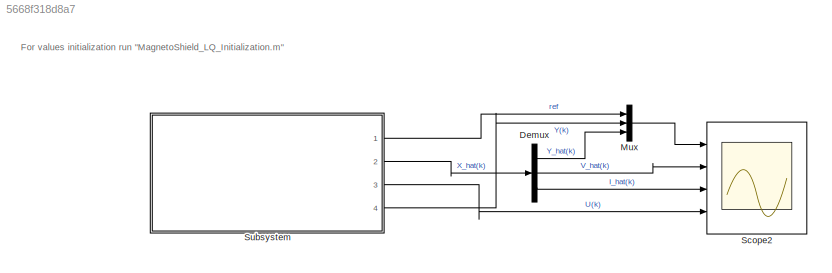
MODEL slx_5668f318d8a7
KIND model
CONFIG AbsTol = auto
CONFIG EnableMultiTasking = on
CONFIG FixedStep = auto
CONFIG MaxStep = auto
CONFIG MinStep = auto
CONFIG RelTol = 1e-3
CONFIG SampleTimeConstraint = Unconstrained
CONFIG Solver = FixedStepAuto
CONFIG SolverName = FixedStepAuto
CONFIG StartTime = 0.0
CONFIG StopTime = 15
BLOCK [Demux] Demux
  DisplayOption = bar
  Outputs = 3
  Ports = [1, 3]
BLOCK [Mux] Mux
  DisplayOption = bar
  Inputs = 3
  Ports = [3, 1]
BLOCK [Scope] Scope2
  Floating = off
  NumInputPorts = 4
  Ports = [4]
  ScopeSpecificationString = Simulink.scopes.TimeScopeBlockCfg('CurrentConfiguration', extmgr.ConfigurationSet(extmgr.Configuration('Core','General UI',true,'FigureColor',[0 0 0]),extmgr.Configuration('Core','Source UI',true),extmgr.Configuration('Sources','WiredSimulink',true,'DataLoggingSaveFormat','StructureWithTime','DataLogging',true),extmgr.Configuration('Visuals','Time Domain',true,'SerializedDisplays',{struct('MinYLim...<+3879ch>
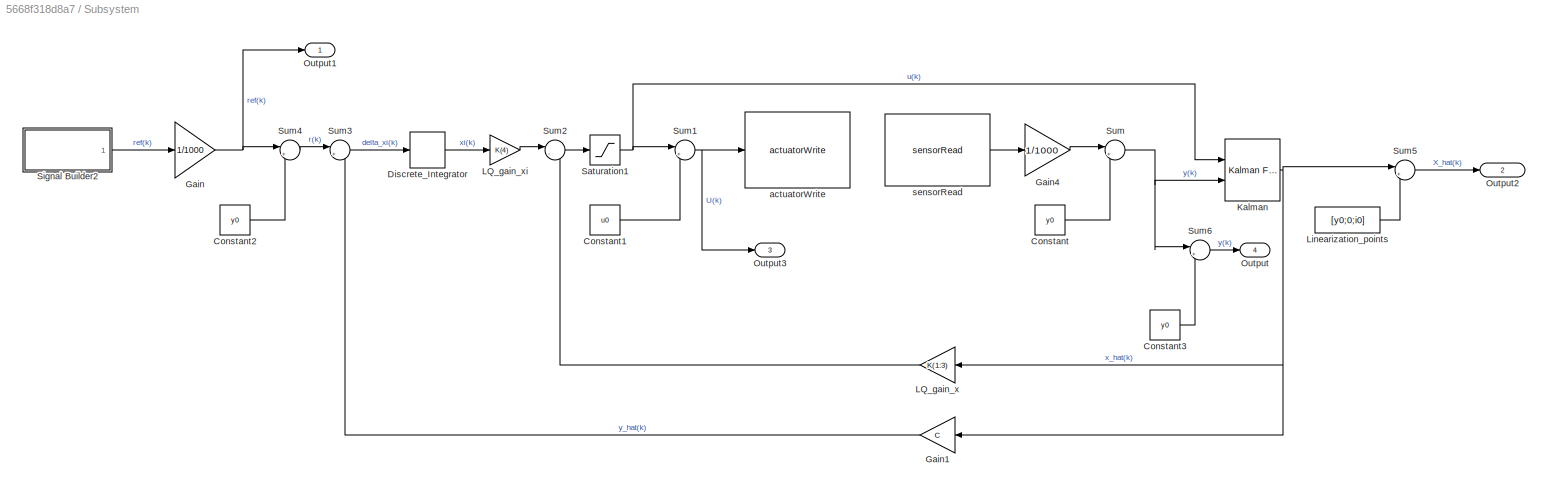
BLOCK [SubSystem] Subsystem
  Ports = [0, 4]
  RequestExecContextInheritance = off
BLOCK [Constant] Subsystem/Constant
  Value = y0
BLOCK [Constant] Subsystem/Constant1
  Value = u0
BLOCK [Constant] Subsystem/Constant2
  Value = y0
BLOCK [Constant] Subsystem/Constant3
  Value = y0
BLOCK [DiscreteIntegrator] Subsystem/Discrete_Integrator
  ICPrevOutput = DiscIntNeverNeededParam
  ICPrevScaledInput = DiscIntNeverNeededParam
  InitialConditionSetting = Auto
  IntegratorMethod = Accumulation: Forward Euler
  LimitOutput = on
  LowerSaturationLimit = -1
  Ports = [1, 1]
  SampleTime = Ts
  UpperSaturationLimit = 1
BLOCK [Gain] Subsystem/Gain
  Gain = 1/1000
  OutDataTypeStr = Inherit: Inherit via internal rule
  ParamDataTypeStr = Inherit: Inherit via internal rule
  SaturateOnIntegerOverflow = off
BLOCK [Gain] Subsystem/Gain1
  Gain = C
  Multiplication = Matrix(K*u)
  OutDataTypeStr = Inherit: Inherit via internal rule
  ParamDataTypeStr = Inherit: Inherit via internal rule
  SaturateOnIntegerOverflow = off
BLOCK [Gain] Subsystem/Gain4
  Gain = 1/1000
  OutDataTypeStr = Inherit: Inherit via internal rule
  ParamDataTypeStr = Inherit: Inherit via internal rule
  SaturateOnIntegerOverflow = off
BLOCK [Reference] Subsystem/Kalman  REF=ctrlSharedLib/Kalman Filter
  Ports = [2, 1]
  SourceBlock = ctrlSharedLib/Kalman Filter
  SourceProductBaseCode = CT,ID
  SourceType = ctrlKalmanFilter
BLOCK [Gain] Subsystem/LQ_gain_x
  Gain = K(1:3)
  Multiplication = Matrix(K*u)
  OutDataTypeStr = Inherit: Inherit via internal rule
  ParamDataTypeStr = Inherit: Inherit via internal rule
  SaturateOnIntegerOverflow = off
BLOCK [Gain] Subsystem/LQ_gain_xi
  Gain = K(4)
  Multiplication = Matrix(K*u)
  OutDataTypeStr = Inherit: Inherit via internal rule
  ParamDataTypeStr = Inherit: Inherit via internal rule
  SaturateOnIntegerOverflow = off
BLOCK [Constant] Subsystem/Linearization_points
  Value = [y0;0;i0]
BLOCK [Outport] Subsystem/Output
  IconDisplay = Signal name
  Port = 4
BLOCK [Outport] Subsystem/Output1
  IconDisplay = Signal name
BLOCK [Outport] Subsystem/Output2
  IconDisplay = Signal name
  Port = 2
BLOCK [Outport] Subsystem/Output3
  IconDisplay = Signal name
  Port = 3
BLOCK [Saturate] Subsystem/Saturation1
  InputPortMap = u0
  LowerLimit = 0-u0
  Ports = [1, 1]
  UpperLimit = 10-u0
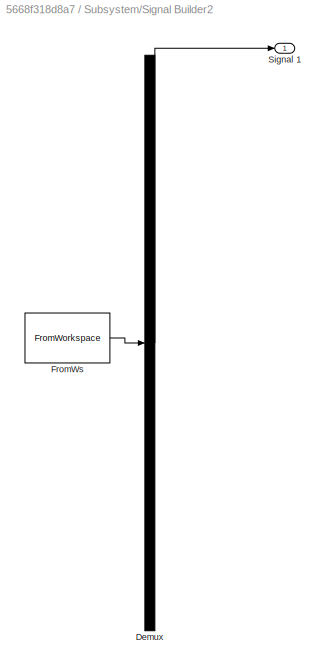
BLOCK [SubSystem] Subsystem/Signal Builder2
  ClipboardFcn = sigbuilder_block('clipboard');
  CloseFcn = sigbuilder_block('close');
  ContinueFcn = sigbuilder_block('continue');
  CopyFcn = sigbuilder_block('copy');
  DeleteFcn = sigbuilder_block('delete');
  LoadFcn = sigbuilder_block('load');
  MaskHideContents = on
  ModelCloseFcn = sigbuilder_block('modelClose');
  NameChangeFcn = sigbuilder_block('namechange');
  OpenFcn = sigbuilder_block('open',[434.4 169.8 550.8 400.2 ]);
  PauseFcn = sigbuilder_block('pause');
  Ports = [0, 1]
  PreSaveFcn = sigbuilder_block('preSave');
  RequestExecContextInheritance = off
  StartFcn = sigbuilder_block('start');
  StopFcn = sigbuilder_block('stop');
  Tag = STV Subsys
BLOCK [Demux] Subsystem/Signal Builder2/Demux
  Outputs = 1
  Ports = [1, 1]
  Tag = STV Demux
BLOCK [FromWorkspace] Subsystem/Signal Builder2/FromWs
  SampleTime = 0
  Tag = STV FromWs
  VariableName = tuvar
  ZeroCross = on
BLOCK [Outport] Subsystem/Signal Builder2/Signal 1
  IconDisplay = Port number
  Tag = STV Outport
BLOCK [Sum] Subsystem/Sum
  IconShape = round
  InputSameDT = off
  Inputs = |+-
  OutDataTypeStr = Inherit: Inherit via internal rule
  Ports = [2, 1]
  SaturateOnIntegerOverflow = off
BLOCK [Sum] Subsystem/Sum1
  IconShape = round
  InputSameDT = off
  Inputs = |++
  OutDataTypeStr = Inherit: Inherit via internal rule
  Ports = [2, 1]
  SaturateOnIntegerOverflow = off
BLOCK [Sum] Subsystem/Sum2
  IconShape = round
  InputSameDT = off
  Inputs = |--
  OutDataTypeStr = Inherit: Inherit via internal rule
  Ports = [2, 1]
  SaturateOnIntegerOverflow = off
BLOCK [Sum] Subsystem/Sum3
  IconShape = round
  InputSameDT = off
  Inputs = |+-
  OutDataTypeStr = Inherit: Inherit via internal rule
  Ports = [2, 1]
  SaturateOnIntegerOverflow = off
BLOCK [Sum] Subsystem/Sum4
  IconShape = round
  InputSameDT = off
  Inputs = |+-
  OutDataTypeStr = Inherit: Inherit via internal rule
  Ports = [2, 1]
  SaturateOnIntegerOverflow = off
BLOCK [Sum] Subsystem/Sum5
  IconShape = round
  InputSameDT = off
  Inputs = |++
  OutDataTypeStr = Inherit: Inherit via internal rule
  Ports = [2, 1]
  SaturateOnIntegerOverflow = off
BLOCK [Sum] Subsystem/Sum6
  IconShape = round
  InputSameDT = off
  Inputs = |++
  OutDataTypeStr = Inherit: Inherit via internal rule
  Ports = [2, 1]
  SaturateOnIntegerOverflow = off
BLOCK [Reference] Subsystem/actuatorWrite  REF=MagnetoLibrary/actuatorWrite
  Ports = [1]
  SourceBlock = MagnetoLibrary/actuatorWrite
  SourceProductName = AutomationShield
BLOCK [Reference] Subsystem/sensorRead  REF=MagnetoLibrary/sensorRead
  Ports = [0, 1]
  SourceBlock = MagnetoLibrary/sensorRead
  SourceProductName = AutomationShield
ANNOTATION (root): For values initialization run "MagnetoShield_LQ_Initialization.m"
LINE Demux:1 -> Mux:3
LINE Demux:2 -> Scope2:2
LINE Demux:3 -> Scope2:3
LINE Mux:1 -> Scope2:1
LINE Subsystem/Constant1:1 -> Subsystem/Sum1:2
LINE Subsystem/Constant2:1 -> Subsystem/Sum4:2
LINE Subsystem/Constant3:1 -> Subsystem/Sum6:2
LINE Subsystem/Constant:1 -> Subsystem/Sum:2
LINE Subsystem/Discrete_Integrator:1 -> Subsystem/LQ_gain_xi:1
LINE Subsystem/Gain1:1 -> Subsystem/Sum3:2
LINE Subsystem/Gain4:1 -> Subsystem/Sum:1
NET Subsystem/Gain:1 -> Subsystem/Output1:1, Subsystem/Sum4:1
NET Subsystem/Kalman:1 -> Subsystem/Gain1:1, Subsystem/LQ_gain_x:1, Subsystem/Sum5:1
LINE Subsystem/LQ_gain_x:1 -> Subsystem/Sum2:2
LINE Subsystem/LQ_gain_xi:1 -> Subsystem/Sum2:1
LINE Subsystem/Linearization_points:1 -> Subsystem/Sum5:2
NET Subsystem/Saturation1:1 -> Subsystem/Kalman:1, Subsystem/Sum1:1
LINE Subsystem/Signal Builder2:1 -> Subsystem/Gain:1
NET Subsystem/Sum1:1 -> Subsystem/Output3:1, Subsystem/actuatorWrite:1
LINE Subsystem/Sum2:1 -> Subsystem/Saturation1:1
LINE Subsystem/Sum3:1 -> Subsystem/Discrete_Integrator:1
LINE Subsystem/Sum4:1 -> Subsystem/Sum3:1
LINE Subsystem/Sum5:1 -> Subsystem/Output2:1
LINE Subsystem/Sum6:1 -> Subsystem/Output:1
NET Subsystem/Sum:1 -> Subsystem/Kalman:2, Subsystem/Sum6:1
LINE Subsystem/sensorRead:1 -> Subsystem/Gain4:1
LINE Subsystem:1 -> Mux:1
LINE Subsystem:2 -> Demux:1
LINE Subsystem:3 -> Scope2:4
LINE Subsystem:4 -> Mux:2
note: NET lines group one-source signal fan-out (src -> all destinations, sorted); 1:1 wires keep LINE
